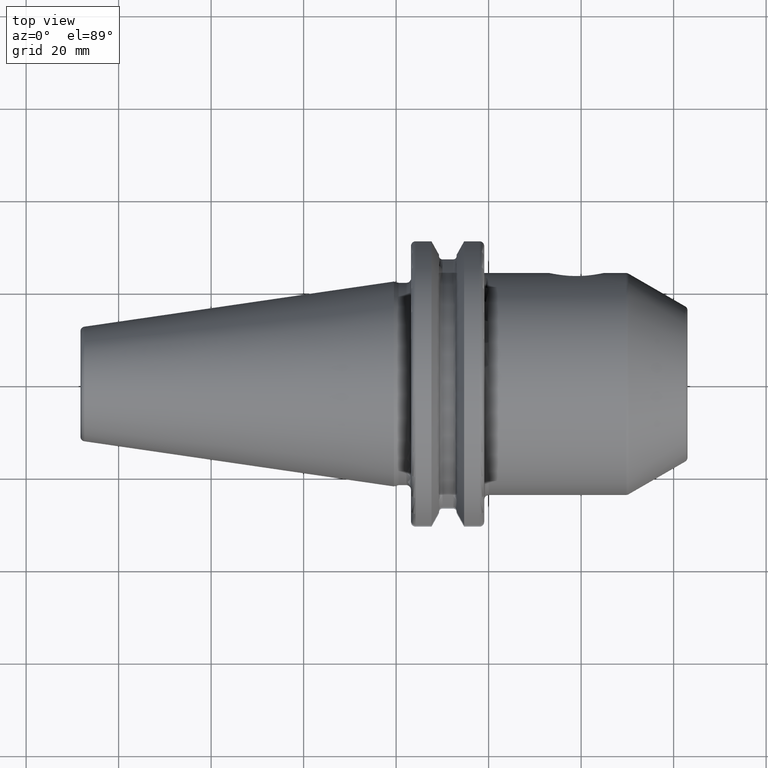
[diagram: clean part render]
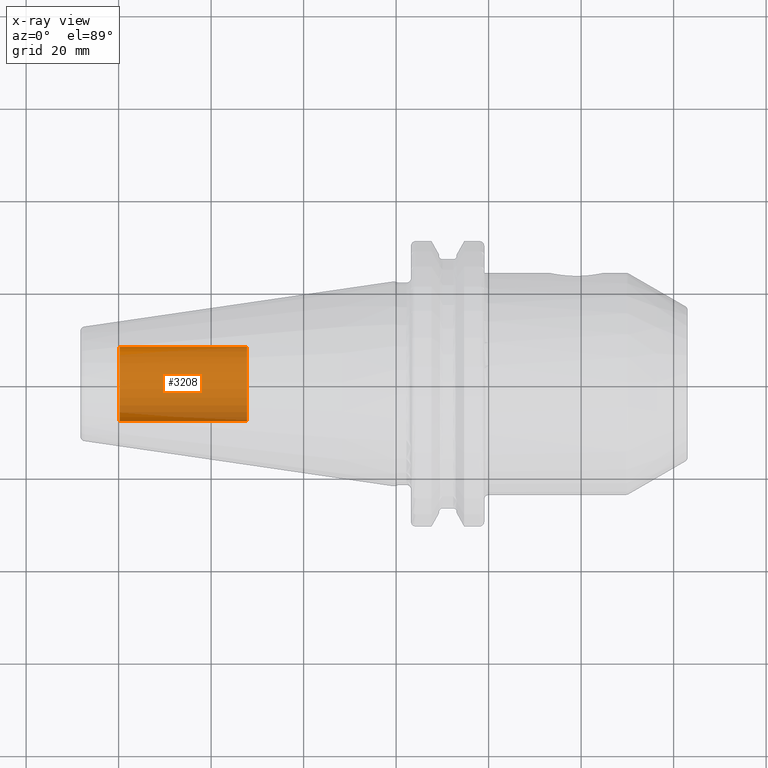
[diagram: x-ray — body ghosted, one internal face saturated and labeled with its STEP entity id]
A machine part, top view, then the same camera in x-ray: the body is ghosted and one INTERNAL B-rep face — a face not visible from any outside direction — is saturated and labeled: STEP entity #3208.
In plain terms, the highlighted cylindrical surface (partial cylindrical patch) has radius 8.0028 mm, axis along (1, 0, 0).
Its self-contained STEP definition (entity closure, byte-faithful):
#3143=CARTESIAN_POINT('',(-5.98E1,0.E0,0.E0));
#3144=DIRECTION('',(-1.E0,0.E0,0.E0));
#3145=DIRECTION('',(0.E0,1.E0,0.E0));
#3146=AXIS2_PLACEMENT_3D('',#3143,#3144,#3145);
#3148=DIRECTION('',(1.E0,0.E0,0.E0));
#3149=VECTOR('',#3148,2.755E1);
#3150=CARTESIAN_POINT('',(-5.98E1,-8.00275E0,0.E0));
#3151=LINE('',#3150,#3149);
#3157=DIRECTION('',(1.E0,0.E0,0.E0));
#3158=VECTOR('',#3157,2.755E1);
#3159=CARTESIAN_POINT('',(-5.98E1,8.00275E0,0.E0));
#3160=LINE('',#3159,#3158);
#3166=CARTESIAN_POINT('',(-3.225E1,0.E0,0.E0));
#3167=DIRECTION('',(1.E0,0.E0,0.E0));
#3168=DIRECTION('',(0.E0,-1.E0,0.E0));
#3169=AXIS2_PLACEMENT_3D('',#3166,#3167,#3168);
#3181=CARTESIAN_POINT('',(-5.98E1,8.00275E0,0.E0));
#3182=CARTESIAN_POINT('',(-5.98E1,-8.00275E0,0.E0));
#3183=VERTEX_POINT('',#3181);
#3184=VERTEX_POINT('',#3182);
#3185=CARTESIAN_POINT('',(-3.225E1,8.00275E0,0.E0));
#3186=CARTESIAN_POINT('',(-3.225E1,-8.00275E0,0.E0));
#3187=VERTEX_POINT('',#3185);
#3188=VERTEX_POINT('',#3186);
#3193=CARTESIAN_POINT('',(-5.98E1,0.E0,0.E0));
#3194=DIRECTION('',(1.E0,0.E0,0.E0));
#3195=DIRECTION('',(0.E0,1.E0,0.E0));
#3196=AXIS2_PLACEMENT_3D('',#3193,#3194,#3195);
#3197=CYLINDRICAL_SURFACE('',#3196,8.00275E0);
#3199=ORIENTED_EDGE('',*,*,#3198,.T.);
#3201=ORIENTED_EDGE('',*,*,#3200,.T.);
#3203=ORIENTED_EDGE('',*,*,#3202,.T.);
#3205=ORIENTED_EDGE('',*,*,#3204,.F.);
#3206=EDGE_LOOP('',(#3199,#3201,#3203,#3205));
#3207=FACE_OUTER_BOUND('',#3206,.F.);
#3208=ADVANCED_FACE('',(#3207),#3197,.T.);
#3147=CIRCLE('',#3146,8.00275E0);
#3170=CIRCLE('',#3169,8.00275E0);
#3198=EDGE_CURVE('',#3183,#3184,#3147,.T.);
#3200=EDGE_CURVE('',#3184,#3188,#3151,.T.);
#3202=EDGE_CURVE('',#3188,#3187,#3170,.T.);
#3204=EDGE_CURVE('',#3183,#3187,#3160,.T.);